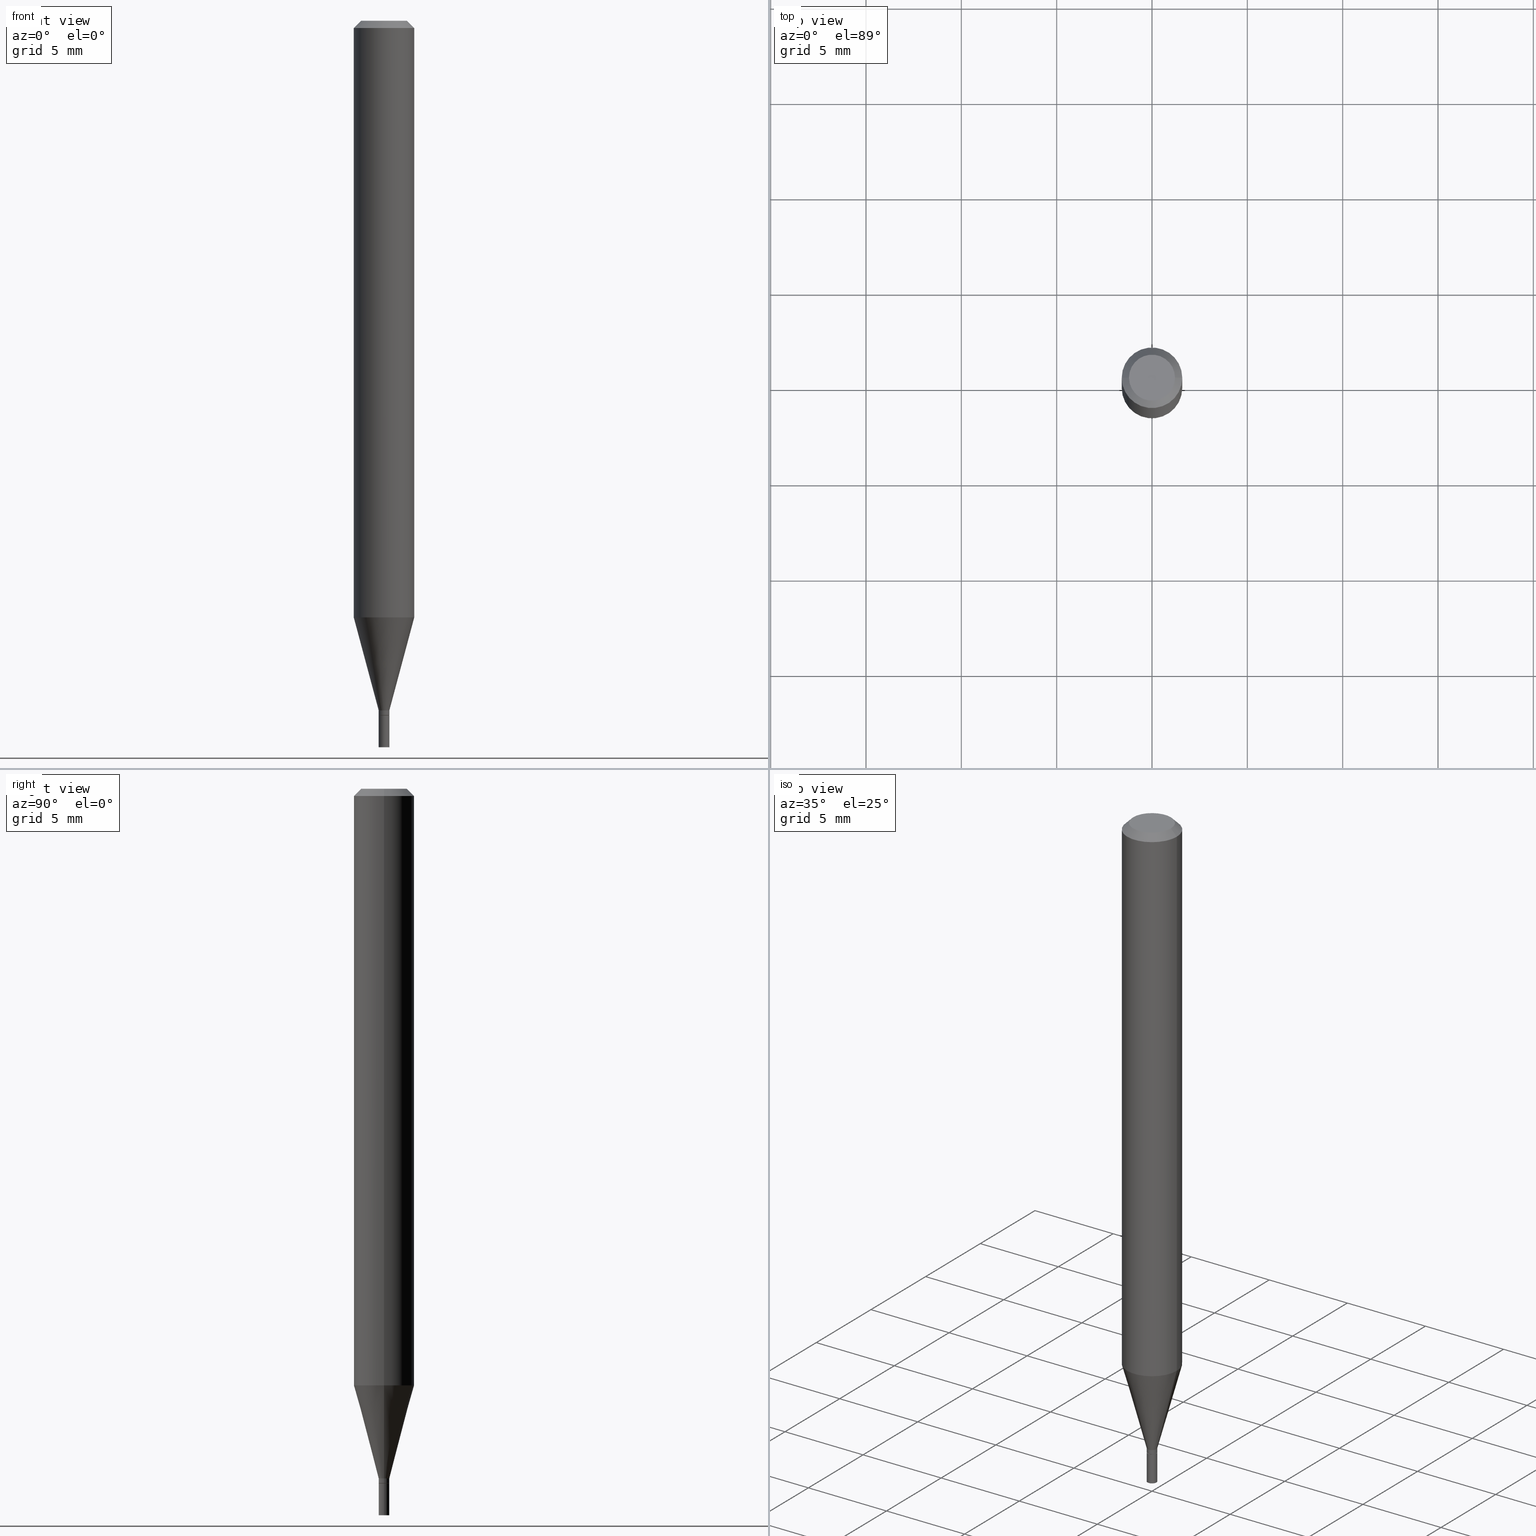
[diagram: canonical four-view strip — front | top / right | iso, engineering-drawing reading convention]
A machine part, canonical four-view strip (front | top / right | iso — engineering-drawing reading convention). The complete STEP part file that produces these views, byte-faithful:
ISO-10303-21;
HEADER;
FILE_DESCRIPTION (( 'STEP AP203' ),
    '1' );
FILE_NAME ('00531.STEP',
    '2024-03-19T21:32:59',
    ( '' ),
    ( '' ),
    'SwSTEP 2.0',
    'SolidWorks 2023',
    '' );
FILE_SCHEMA (( 'CONFIG_CONTROL_DESIGN' ));
ENDSEC;

DATA;
#1 = CLOSED_SHELL ( 'NONE', ( #451, #23, #195, #139 ) ) ;
#2 = SECURITY_CLASSIFICATION ( '', '', #167 ) ;
#3 = FACE_OUTER_BOUND ( 'NONE', #63, .T. ) ;
#4 = ORIENTED_EDGE ( 'NONE', *, *, #336, .F. ) ;
#5 = DIRECTION ( 'NONE',  ( 1.000000000000000000, -6.982962677686295898E-15, 0.000000000000000000 ) ) ;
#6 = ORIENTED_EDGE ( 'NONE', *, *, #160, .T. ) ;
#7 = DIRECTION ( 'NONE',  ( -2.445468806185136597E-29, 3.491481338843145583E-15, 1.000000000000000000 ) ) ;
#8 = VERTEX_POINT ( 'NONE', #300 ) ;
#9 = VECTOR ( 'NONE', #108, 39.37007874015748143 ) ;
#10 = LINE ( 'NONE', #357, #378 ) ;
#11 = VERTEX_POINT ( 'NONE', #126 ) ;
#12 = COORDINATED_UNIVERSAL_TIME_OFFSET ( 5, 0, .BEHIND. ) ;
#13 = ORIENTED_EDGE ( 'NONE', *, *, #336, .T. ) ;
#14 = EDGE_LOOP ( 'NONE', ( #262, #448 ) ) ;
#15 = EDGE_CURVE ( 'NONE', #11, #150, #39, .T. ) ;
#16 = AXIS2_PLACEMENT_3D ( 'NONE', #62, #265, #135 ) ;
#17 = CONICAL_SURFACE ( 'NONE', #105, 0.01049999999999999892, 0.7853981633974718157 ) ;
#18 = LINE ( 'NONE', #233, #48 ) ;
#19 = DIRECTION ( 'NONE',  ( 1.000000000000000000, -6.982962677686295110E-15, 0.000000000000000000 ) ) ;
#20 = FACE_OUTER_BOUND ( 'NONE', #367, .T. ) ;
#21 = PERSON_AND_ORGANIZATION_ROLE ( 'design_supplier' ) ;
#22 = DIRECTION ( 'NONE',  ( 1.000000000000000000, -6.982962677686262766E-15, 0.000000000000000000 ) ) ;
#23 = ADVANCED_FACE ( 'NONE', ( #376 ), #405, .F. ) ;
#24 = CARTESIAN_POINT ( 'NONE',  ( -0.01099999999999992130, 7.815970093361046124E-17, -5.410828599280358539E-31 ) ) ;
#25 = CIRCLE ( 'NONE', #413, 0.06250000000000000000 ) ;
#26 = CIRCLE ( 'NONE', #429, 0.01049999999999999892 ) ;
#27 = CARTESIAN_POINT ( 'NONE',  ( 7.681258945458397305E-17, 0.01099999999999499121, -1.434000000000000163 ) ) ;
#28 = MANIFOLD_SOLID_BREP ( 'Body-Move/Copy2[2]', #266 ) ;
#29 = CC_DESIGN_PERSON_AND_ORGANIZATION_ASSIGNMENT ( #332, #402, ( #2 ) ) ;
#30 = CARTESIAN_POINT ( 'NONE',  ( 3.668203209277705088E-31, -5.237222008264718399E-17, -0.01499999999999999944 ) ) ;
#31 = EDGE_CURVE ( 'NONE', #152, #283, #18, .T. ) ;
#32 = FACE_OUTER_BOUND ( 'NONE', #64, .T. ) ;
#33 = AXIS2_PLACEMENT_3D ( 'NONE', #116, #36, #466 ) ;
#34 = DIRECTION ( 'NONE',  ( -2.445468806185136597E-29, 3.491481338843145583E-15, 1.000000000000000000 ) ) ;
#35 = CARTESIAN_POINT ( 'NONE',  ( -0.01099999999999999936, -5.043843423149283907E-15, -1.434000000000000163 ) ) ;
#36 = DIRECTION ( 'NONE',  ( -2.445468806185136597E-29, 3.491481338843145583E-15, 1.000000000000000000 ) ) ;
#37 = ADVANCED_FACE ( 'NONE', ( #55 ), #236, .T. ) ;
#38 = VERTEX_POINT ( 'NONE', #372 ) ;
#39 = CIRCLE ( 'NONE', #16, 0.04749999999999999362 ) ;
#40 = AXIS2_PLACEMENT_3D ( 'NONE', #221, #121, #364 ) ;
#41 = CARTESIAN_POINT ( 'NONE',  ( 3.482347580007634944E-29, -4.971869426512640168E-15, -1.424000000000000155 ) ) ;
#42 = VERTEX_POINT ( 'NONE', #53 ) ;
#43 = DIRECTION ( 'NONE',  ( -0.7071067811865323627, 2.468850131082098105E-15, -0.7071067811865626718 ) ) ;
#44 = VERTEX_POINT ( 'NONE', #196 ) ;
#45 = DIRECTION ( 'NONE',  ( -2.445468806185136597E-29, 3.491481338843145583E-15, 1.000000000000000000 ) ) ;
#46 = ORIENTED_EDGE ( 'NONE', *, *, #84, .F. ) ;
#47 = APPROVAL ( #91, 'UNSPECIFIED' ) ;
#48 = VECTOR ( 'NONE', #90, 39.37007874015748143 ) ;
#49 = PERSON_AND_ORGANIZATION ( #120, #295 ) ;
#50 = PRODUCT_DEFINITION_FORMATION_WITH_SPECIFIED_SOURCE ( 'ANY', '', #201, .NOT_KNOWN. ) ;
#51 = EDGE_LOOP ( 'NONE', ( #275, #190, #6, #289 ) ) ;
#52 = LENGTH_MEASURE_WITH_UNIT ( LENGTH_MEASURE( 0.02539999999999999897 ), #194 );
#53 = CARTESIAN_POINT ( 'NONE',  ( 0.01099999999999992130, -5.081851088686198048E-15, -1.433500000000000218 ) ) ;
#54 = PERSON_AND_ORGANIZATION ( #120, #295 ) ;
#55 = FACE_OUTER_BOUND ( 'NONE', #259, .T. ) ;
#56 = ADVANCED_FACE ( 'NONE', ( #20 ), #335, .T. ) ;
#57 = CALENDAR_DATE ( 2024, 19, 3 ) ;
#58 = AXIS2_PLACEMENT_3D ( 'NONE', #460, #422, #210 ) ;
#59 = DIRECTION ( 'NONE',  ( 1.000000000000000000, -6.982962677686265922E-15, 4.876176775795935793E-29 ) ) ;
#60 = CC_DESIGN_PERSON_AND_ORGANIZATION_ASSIGNMENT ( #49, #21, ( #50 ) ) ;
#61 = APPROVAL_DATE_TIME ( #379, #305 ) ;
#62 = CARTESIAN_POINT ( 'NONE',  ( -1.575719463841376315E-44, 2.249709785436367094E-30, 6.443424916547820620E-16 ) ) ;
#63 = EDGE_LOOP ( 'NONE', ( #222, #399, #157, #100 ) ) ;
#64 = EDGE_LOOP ( 'NONE', ( #424, #119, #219, #231 ) ) ;
#65 = CC_DESIGN_PERSON_AND_ORGANIZATION_ASSIGNMENT ( #230, #202, ( #50 ) ) ;
#66 = DIRECTION ( 'NONE',  ( -2.445468806185136597E-29, 3.491481338843145583E-15, 1.000000000000000000 ) ) ;
#67 = CIRCLE ( 'NONE', #329, 0.06250000000000000000 ) ;
#68 = ADVANCED_BREP_SHAPE_REPRESENTATION ( '00531', ( #189, #28, #321 ), #389 ) ;
#69 = CARTESIAN_POINT ( 'NONE',  ( 3.482347580007634944E-29, -4.971869426512640168E-15, -1.424000000000000155 ) ) ;
#70 = EDGE_CURVE ( 'NONE', #44, #410, #270, .T. ) ;
#71 = FACE_OUTER_BOUND ( 'NONE', #185, .T. ) ;
#72 = APPROVAL_DATE_TIME ( #352, #427 ) ;
#73 = PLANE ( 'NONE',  #75 ) ;
#74 = AXIS2_PLACEMENT_3D ( 'NONE', #27, #140, #137 ) ;
#75 = AXIS2_PLACEMENT_3D ( 'NONE', #348, #314, #282 ) ;
#76 = DIRECTION ( 'NONE',  ( 1.000000000000000000, -6.982962677686245411E-15, 0.000000000000000000 ) ) ;
#77 = DIRECTION ( 'NONE',  ( -2.445468806185136597E-29, 3.491481338843145583E-15, 1.000000000000000000 ) ) ;
#78 = ORIENTED_EDGE ( 'NONE', *, *, #387, .T. ) ;
#79 = DIRECTION ( 'NONE',  ( 1.000000000000000000, -6.982962677686266711E-15, 4.876176775795935793E-29 ) ) ;
#80 = ORIENTED_EDGE ( 'NONE', *, *, #355, .F. ) ;
#81 = CIRCLE ( 'NONE', #331, 0.01099999999999999936 ) ;
#82 = FACE_OUTER_BOUND ( 'NONE', #256, .T. ) ;
#83 = EDGE_LOOP ( 'NONE', ( #322, #247, #439, #86 ) ) ;
#84 = EDGE_CURVE ( 'NONE', #182, #227, #428, .T. ) ;
#85 = CARTESIAN_POINT ( 'NONE',  ( 0.000000000000000000, 0.000000000000000000, 0.000000000000000000 ) ) ;
#86 = ORIENTED_EDGE ( 'NONE', *, *, #178, .F. ) ;
#87 = ADVANCED_FACE ( 'NONE', ( #304 ), #211, .T. ) ;
#88 = ORIENTED_EDGE ( 'NONE', *, *, #325, .T. ) ;
#89 = COORDINATED_UNIVERSAL_TIME_OFFSET ( 5, 0, .BEHIND. ) ;
#90 = DIRECTION ( 'NONE',  ( -0.2588190451025216832, 5.211531920934551831E-15, 0.9659258262890679791 ) ) ;
#91 = APPROVAL_STATUS ( 'not_yet_approved' ) ;
#92 = EDGE_CURVE ( 'NONE', #283, #301, #67, .T. ) ;
#93 = DIRECTION ( 'NONE',  ( -2.438088387897960049E-29, 3.491481338843145188E-15, 1.000000000000000000 ) ) ;
#94 = EDGE_CURVE ( 'NONE', #301, #401, #272, .T. ) ;
#95 = DIRECTION ( 'NONE',  ( -2.445468806185136597E-29, 3.491481338843145583E-15, 1.000000000000000000 ) ) ;
#96 = DATE_AND_TIME ( #340, #191 ) ;
#97 = AXIS2_PLACEMENT_3D ( 'NONE', #166, #95, #269 ) ;
#98 = CC_DESIGN_APPROVAL ( #47, ( #344 ) ) ;
#99 = CARTESIAN_POINT ( 'NONE',  ( 3.012326967607737433E-29, -4.300804560375218494E-15, -1.231799383410203452 ) ) ;
#100 = ORIENTED_EDGE ( 'NONE', *, *, #112, .F. ) ;
#101 = LINE ( 'NONE', #24, #9 ) ;
#102 = SHAPE_DEFINITION_REPRESENTATION ( #435, #68 ) ;
#103 = CARTESIAN_POINT ( 'NONE',  ( -0.04749999999999999362, 3.578768372314221846E-16, 6.443424916547796954E-16 ) ) ;
#104 = VECTOR ( 'NONE', #165, 39.37007874015748143 ) ;
#105 = AXIS2_PLACEMENT_3D ( 'NONE', #180, #328, #319 ) ;
#106 = CALENDAR_DATE ( 2024, 19, 3 ) ;
#107 = EDGE_CURVE ( 'NONE', #283, #38, #168, .T. ) ;
#108 = DIRECTION ( 'NONE',  ( -2.445468806185136877E-29, 3.491481338843145188E-15, 1.000000000000000000 ) ) ;
#109 = ORIENTED_EDGE ( 'NONE', *, *, #70, .F. ) ;
#110 = CARTESIAN_POINT ( 'NONE',  ( 0.01049999999999999892, -5.080105348016776545E-15, -1.434000000000000163 ) ) ;
#111 = DIRECTION ( 'NONE',  ( -2.445468806185136597E-29, 3.491481338843145583E-15, 1.000000000000000000 ) ) ;
#112 = EDGE_CURVE ( 'NONE', #38, #401, #25, .T. ) ;
#113 = APPROVAL_PERSON_ORGANIZATION ( #132, #305, #130 ) ;
#114 = DIRECTION ( 'NONE',  ( 1.000000000000000000, -6.982962677686245411E-15, 0.000000000000000000 ) ) ;
#115 = ADVANCED_FACE ( 'NONE', ( #317 ), #250, .T. ) ;
#116 = CARTESIAN_POINT ( 'NONE',  ( 3.012326967607737433E-29, -4.300804560375218494E-15, -1.231799383410203452 ) ) ;
#117 = ORIENTED_EDGE ( 'NONE', *, *, #370, .T. ) ;
#118 = CARTESIAN_POINT ( 'NONE',  ( 0.06250000000000000000, -4.811533449433679005E-16, -0.01499999999999999944 ) ) ;
#119 = ORIENTED_EDGE ( 'NONE', *, *, #246, .T. ) ;
#120 = PERSON ( 'UNSPECIFIED', 'UNSPECIFIED', 'UNSPECIFIED', ('UNSPECIFIED'), ('UNSPECIFIED'), ('UNSPECIFIED') ) ;
#121 = DIRECTION ( 'NONE',  ( -2.445468806185136597E-29, 3.491481338843145583E-15, 1.000000000000000000 ) ) ;
#122 = ORIENTED_EDGE ( 'NONE', *, *, #107, .T. ) ;
#123 = DIRECTION ( 'NONE',  ( 0.7071067811865323627, -7.319954787623203981E-15, -0.7071067811865626718 ) ) ;
#124 = ORIENTED_EDGE ( 'NONE', *, *, #278, .T. ) ;
#125 = COORDINATED_UNIVERSAL_TIME_OFFSET ( 5, 0, .BEHIND. ) ;
#126 = CARTESIAN_POINT ( 'NONE',  ( 0.04749999999999999362, -4.035134999187566790E-16, 6.443424916547846258E-16 ) ) ;
#127 = VECTOR ( 'NONE', #123, 39.37007874015748143 ) ;
#128 = CARTESIAN_POINT ( 'NONE',  ( -0.01099999999999999936, 7.815970093361101591E-17, -5.410828599280396199E-31 ) ) ;
#129 = DIRECTION ( 'NONE',  ( -2.445468806185136597E-29, 3.491481338843145583E-15, 1.000000000000000000 ) ) ;
#130 = APPROVAL_ROLE ( '' ) ;
#131 = DIRECTION ( 'NONE',  ( -2.445468806185136597E-29, 3.491481338843145583E-15, 1.000000000000000000 ) ) ;
#132 = PERSON_AND_ORGANIZATION ( #120, #295 ) ;
#133 = VECTOR ( 'NONE', #385, 39.37007874015748143 ) ;
#134 = CIRCLE ( 'NONE', #162, 0.01099999999999991956 ) ;
#135 = DIRECTION ( 'NONE',  ( 1.000000000000000000, -6.982962677686267499E-15, 4.852736867747366768E-29 ) ) ;
#136 = EDGE_CURVE ( 'NONE', #365, #152, #101, .T. ) ;
#137 = DIRECTION ( 'NONE',  ( -1.000000000000000000, 6.982962677686265922E-15, -4.876176775795935793E-29 ) ) ;
#138 = DIRECTION ( 'NONE',  ( 1.000000000000000000, -6.982962677686295898E-15, 0.000000000000000000 ) ) ;
#139 = ADVANCED_FACE ( 'NONE', ( #71 ), #384, .F. ) ;
#140 = DIRECTION ( 'NONE',  ( 2.438088387897960049E-29, -3.491481338843145188E-15, -1.000000000000000000 ) ) ;
#141 = EDGE_LOOP ( 'NONE', ( #109, #78, #380, #80 ) ) ;
#142 = CARTESIAN_POINT ( 'NONE',  ( 0.01099999999999999936, -7.681258945454891804E-17, 5.363794453375529652E-31 ) ) ;
#143 = CARTESIAN_POINT ( 'NONE',  ( 0.01099999999999991956, -5.048682015967188692E-15, -1.424000000000000155 ) ) ;
#144 = DIRECTION ( 'NONE',  ( -2.445468806185136597E-29, 3.491481338843145583E-15, 1.000000000000000000 ) ) ;
#145 = AXIS2_PLACEMENT_3D ( 'NONE', #409, #450, #453 ) ;
#146 = CIRCLE ( 'NONE', #267, 0.01099999999999999936 ) ;
#147 = DIRECTION ( 'NONE',  ( 1.000000000000000000, -6.982962677686266711E-15, 4.876176775795935793E-29 ) ) ;
#148 = ORIENTED_EDGE ( 'NONE', *, *, #136, .F. ) ;
#149 = CYLINDRICAL_SURFACE ( 'NONE', #257, 0.06250000000000000000 ) ;
#150 = VERTEX_POINT ( 'NONE', #103 ) ;
#151 = DIRECTION ( 'NONE',  ( 1.000000000000000000, -6.982962677686266711E-15, 4.876176775795935793E-29 ) ) ;
#152 = VERTEX_POINT ( 'NONE', #465 ) ;
#153 = CIRCLE ( 'NONE', #33, 0.06250000000000000000 ) ;
#154 = LINE ( 'NONE', #118, #127 ) ;
#155 = ORIENTED_EDGE ( 'NONE', *, *, #457, .F. ) ;
#156 = DIMENSIONAL_EXPONENTS ( 1.000000000000000000, 0.000000000000000000, 0.000000000000000000, 0.000000000000000000, 0.000000000000000000, 0.000000000000000000, 0.000000000000000000 ) ;
#157 = ORIENTED_EDGE ( 'NONE', *, *, #94, .T. ) ;
#158 = APPLICATION_PROTOCOL_DEFINITION ( 'international standard', 'config_control_design', 1994, #358 ) ;
#159 = EDGE_LOOP ( 'NONE', ( #330, #124, #395, #4 ) ) ;
#160 = EDGE_CURVE ( 'NONE', #8, #301, #345, .T. ) ;
#161 = CIRCLE ( 'NONE', #218, 0.04749999999999999362 ) ;
#162 = AXIS2_PLACEMENT_3D ( 'NONE', #69, #207, #311 ) ;
#163 =( CONVERSION_BASED_UNIT ( 'INCH', #52 ) LENGTH_UNIT ( ) NAMED_UNIT ( #156 ) );
#164 = EDGE_CURVE ( 'NONE', #432, #44, #404, .T. ) ;
#165 = DIRECTION ( 'NONE',  ( -2.445468806185136877E-29, 3.491481338843145188E-15, 1.000000000000000000 ) ) ;
#166 = CARTESIAN_POINT ( 'NONE',  ( 3.506802268069485929E-29, -5.006784239901070239E-15, -1.434000000000000163 ) ) ;
#167 = SECURITY_CLASSIFICATION_LEVEL ( 'unclassified' ) ;
#168 = LINE ( 'NONE', #171, #133 ) ;
#169 = CC_DESIGN_APPROVAL ( #305, ( #50 ) ) ;
#170 = CYLINDRICAL_SURFACE ( 'NONE', #316, 0.01099999999999999936 ) ;
#171 = CARTESIAN_POINT ( 'NONE',  ( -0.06250000000000000000, 4.440892098500626162E-16, -3.074334431409316114E-30 ) ) ;
#172 = EDGE_CURVE ( 'NONE', #150, #11, #161, .T. ) ;
#173 = APPROVAL_STATUS ( 'not_yet_approved' ) ;
#174 = CARTESIAN_POINT ( 'NONE',  ( -0.01049999999999999892, -4.932177252646259259E-15, -1.434000000000000163 ) ) ;
#175 = ADVANCED_FACE ( 'NONE', ( #32 ), #461, .T. ) ;
#176 = DIRECTION ( 'NONE',  ( -2.445468806185136597E-29, 3.491481338843145583E-15, 1.000000000000000000 ) ) ;
#177 = CONICAL_SURFACE ( 'NONE', #280, 0.01099999999999991956, 0.2617993877991502960 ) ;
#178 = EDGE_CURVE ( 'NONE', #432, #454, #206, .T. ) ;
#179 = DIRECTION ( 'NONE',  ( 1.000000000000000000, -6.982962677686287221E-15, 0.000000000000000000 ) ) ;
#180 = CARTESIAN_POINT ( 'NONE',  ( 3.506802268069485929E-29, -5.006784239901070239E-15, -1.434000000000000163 ) ) ;
#181 = CARTESIAN_POINT ( 'NONE',  ( 3.505579533666394249E-29, -5.005038499231650313E-15, -1.433500000000000218 ) ) ;
#182 = VERTEX_POINT ( 'NONE', #390 ) ;
#183 = AXIS2_PLACEMENT_3D ( 'NONE', #264, #371, #19 ) ;
#184 = CARTESIAN_POINT ( 'NONE',  ( 0.06250000000000000000, -4.888073874380388472E-16, -0.01499999999999999944 ) ) ;
#185 = EDGE_LOOP ( 'NONE', ( #240, #462 ) ) ;
#186 = CARTESIAN_POINT ( 'NONE',  ( 0.01099999999999999936, -5.314034597719267489E-15, -1.500000000000000222 ) ) ;
#187 = ORIENTED_EDGE ( 'NONE', *, *, #217, .T. ) ;
#188 = CARTESIAN_POINT ( 'NONE',  ( 3.506802268069485929E-29, -5.006784239901070239E-15, -1.434000000000000163 ) ) ;
#189 = MANIFOLD_SOLID_BREP ( 'Body-Move/Copy2[1]', #1 ) ;
#190 = ORIENTED_EDGE ( 'NONE', *, *, #442, .T. ) ;
#191 = LOCAL_TIME ( 17, 32, 59.00000000000000000, #125 ) ;
#192 = CARTESIAN_POINT ( 'NONE',  ( 0.01099999999999999936, -5.083596829355619552E-15, -1.434000000000000163 ) ) ;
#193 = ORIENTED_EDGE ( 'NONE', *, *, #164, .F. ) ;
#194 =( LENGTH_UNIT ( ) NAMED_UNIT ( * ) SI_UNIT ( $, .METRE. ) );
#195 = ADVANCED_FACE ( 'NONE', ( #204 ), #170, .T. ) ;
#196 = CARTESIAN_POINT ( 'NONE',  ( -0.01099999999999999936, -5.043843423149283907E-15, -1.500000000000000222 ) ) ;
#197 = DATE_AND_TIME ( #57, #346 ) ;
#198 = ORIENTED_EDGE ( 'NONE', *, *, #84, .T. ) ;
#199 = CIRCLE ( 'NONE', #40, 0.06250000000000000000 ) ;
#200 = DIRECTION ( 'NONE',  ( -1.000000000000000000, 6.982962677686266711E-15, 0.000000000000000000 ) ) ;
#201 = PRODUCT ( '00531', '00531', '', ( #342 ) ) ;
#202 = PERSON_AND_ORGANIZATION_ROLE ( 'creator' ) ;
#203 = DIRECTION ( 'NONE',  ( 2.445468806185136597E-29, -3.491481338843145583E-15, -1.000000000000000000 ) ) ;
#204 = FACE_OUTER_BOUND ( 'NONE', #141, .T. ) ;
#205 = LOCAL_TIME ( 17, 32, 59.00000000000000000, #310 ) ;
#206 = LINE ( 'NONE', #142, #396 ) ;
#207 = DIRECTION ( 'NONE',  ( -2.445468806185136597E-29, 3.491481338843145583E-15, 1.000000000000000000 ) ) ;
#208 = DIRECTION ( 'NONE',  ( 1.000000000000000000, -6.982962677686267499E-15, 4.852736867747366768E-29 ) ) ;
#209 = EDGE_CURVE ( 'NONE', #8, #152, #134, .T. ) ;
#210 = DIRECTION ( 'NONE',  ( 1.000000000000000000, -6.982962677686265922E-15, 4.876176775795935793E-29 ) ) ;
#211 = CONICAL_SURFACE ( 'NONE', #145, 0.06250000000000000000, 0.7853981633974268517 ) ;
#212 = AXIS2_PLACEMENT_3D ( 'NONE', #253, #397, #79 ) ;
#213 = CARTESIAN_POINT ( 'NONE',  ( -0.06249999999999997918, -3.856715350525155878E-15, -1.231799383410203452 ) ) ;
#214 = DIRECTION ( 'NONE',  ( -2.445468806185136597E-29, 3.491481338843145583E-15, 1.000000000000000000 ) ) ;
#215 = EDGE_LOOP ( 'NONE', ( #193, #441 ) ) ;
#216 = DIRECTION ( 'NONE',  ( -2.445468806185136597E-29, 3.491481338843145583E-15, 1.000000000000000000 ) ) ;
#217 = EDGE_CURVE ( 'NONE', #227, #42, #249, .T. ) ;
#218 = AXIS2_PLACEMENT_3D ( 'NONE', #383, #419, #208 ) ;
#219 = ORIENTED_EDGE ( 'NONE', *, *, #325, .F. ) ;
#220 = CIRCLE ( 'NONE', #251, 0.01099999999999999936 ) ;
#221 = CARTESIAN_POINT ( 'NONE',  ( 3.668203209277705088E-31, -5.237222008264718399E-17, -0.01499999999999999944 ) ) ;
#222 = ORIENTED_EDGE ( 'NONE', *, *, #107, .F. ) ;
#223 = DIRECTION ( 'NONE',  ( 1.000000000000000000, -6.982962677686265922E-15, 4.876176775795936353E-29 ) ) ;
#224 = ORIENTED_EDGE ( 'NONE', *, *, #209, .T. ) ;
#225 = DESIGN_CONTEXT ( 'detailed design', #406, 'design' ) ;
#226 = APPLICATION_PROTOCOL_DEFINITION ( 'international standard', 'config_control_design', 1994, #406 ) ;
#227 = VERTEX_POINT ( 'NONE', #110 ) ;
#228 = APPROVAL_PERSON_ORGANIZATION ( #239, #427, #459 ) ;
#229 = LOCAL_TIME ( 17, 32, 59.00000000000000000, #12 ) ;
#230 = PERSON_AND_ORGANIZATION ( #120, #295 ) ;
#231 = ORIENTED_EDGE ( 'NONE', *, *, #217, .F. ) ;
#232 = APPROVAL_DATE_TIME ( #197, #47 ) ;
#233 = CARTESIAN_POINT ( 'NONE',  ( -0.01099999999999991956, -4.893709725579029078E-15, -1.424000000000000155 ) ) ;
#234 = APPROVAL_ROLE ( '' ) ;
#235 = ORIENTED_EDGE ( 'NONE', *, *, #246, .F. ) ;
#236 = CONICAL_SURFACE ( 'NONE', #293, 0.06250000000000000000, 0.7853981633974268517 ) ;
#237 = CALENDAR_DATE ( 2024, 19, 3 ) ;
#238 = DIRECTION ( 'NONE',  ( -2.445468806185136877E-29, 3.491481338843145188E-15, 1.000000000000000000 ) ) ;
#239 = PERSON_AND_ORGANIZATION ( #120, #295 ) ;
#240 = ORIENTED_EDGE ( 'NONE', *, *, #315, .T. ) ;
#241 = DIRECTION ( 'NONE',  ( 0.2588190451025216832, 1.565188264969619798E-15, 0.9659258262890679791 ) ) ;
#242 = AXIS2_PLACEMENT_3D ( 'NONE', #307, #129, #341 ) ;
#243 = CIRCLE ( 'NONE', #362, 0.01099999999999991956 ) ;
#244 = DIRECTION ( 'NONE',  ( -2.445468806185136877E-29, 3.491481338843145188E-15, 1.000000000000000000 ) ) ;
#245 = CARTESIAN_POINT ( 'NONE',  ( 3.668203209277704895E-29, -5.237222008264718177E-15, -1.500000000000000222 ) ) ;
#246 = EDGE_CURVE ( 'NONE', #182, #365, #347, .T. ) ;
#247 = ORIENTED_EDGE ( 'NONE', *, *, #70, .T. ) ;
#248 = FACE_OUTER_BOUND ( 'NONE', #415, .T. ) ;
#249 = LINE ( 'NONE', #417, #455 ) ;
#250 = CONICAL_SURFACE ( 'NONE', #273, 0.01099999999999991956, 0.2617993877991502960 ) ;
#251 = AXIS2_PLACEMENT_3D ( 'NONE', #290, #216, #76 ) ;
#252 = DIRECTION ( 'NONE',  ( 1.000000000000000000, -6.982962677686295898E-15, 0.000000000000000000 ) ) ;
#253 = CARTESIAN_POINT ( 'NONE',  ( 0.000000000000000000, 0.000000000000000000, 0.000000000000000000 ) ) ;
#254 = ORIENTED_EDGE ( 'NONE', *, *, #31, .T. ) ;
#255 = DIRECTION ( 'NONE',  ( -2.445468806185136597E-29, 3.491481338843145583E-15, 1.000000000000000000 ) ) ;
#256 = EDGE_LOOP ( 'NONE', ( #235, #198, #187, #155 ) ) ;
#257 = AXIS2_PLACEMENT_3D ( 'NONE', #394, #297, #147 ) ;
#258 = FACE_OUTER_BOUND ( 'NONE', #83, .T. ) ;
#259 = EDGE_LOOP ( 'NONE', ( #381, #363, #13, #403 ) ) ;
#260 = ADVANCED_FACE ( 'NONE', ( #277 ), #73, .F. ) ;
#261 = LINE ( 'NONE', #292, #447 ) ;
#262 = ORIENTED_EDGE ( 'NONE', *, *, #172, .T. ) ;
#263 = ADVANCED_FACE ( 'NONE', ( #248 ), #386, .F. ) ;
#264 = CARTESIAN_POINT ( 'NONE',  ( 3.505579533666394249E-29, -5.005038499231650313E-15, -1.433500000000000218 ) ) ;
#265 = DIRECTION ( 'NONE',  ( -2.445468806185136597E-29, 3.491481338843145583E-15, 1.000000000000000000 ) ) ;
#266 = CLOSED_SHELL ( 'NONE', ( #56, #175, #87, #287, #115, #349, #377, #37, #260, #263, #418, #445 ) ) ;
#267 = AXIS2_PLACEMENT_3D ( 'NONE', #188, #214, #114 ) ;
#268 = CARTESIAN_POINT ( 'NONE',  ( 0.000000000000000000, 0.000000000000000000, 0.000000000000000000 ) ) ;
#269 = DIRECTION ( 'NONE',  ( 1.000000000000000000, -6.982962677686287221E-15, 0.000000000000000000 ) ) ;
#270 = LINE ( 'NONE', #128, #104 ) ;
#271 = PERSON_AND_ORGANIZATION ( #120, #295 ) ;
#272 = LINE ( 'NONE', #412, #420 ) ;
#273 = AXIS2_PLACEMENT_3D ( 'NONE', #285, #463, #138 ) ;
#274 = CIRCLE ( 'NONE', #183, 0.01099999999999992130 ) ;
#275 = ORIENTED_EDGE ( 'NONE', *, *, #31, .F. ) ;
#276 = EDGE_CURVE ( 'NONE', #227, #182, #26, .T. ) ;
#277 = FACE_OUTER_BOUND ( 'NONE', #14, .T. ) ;
#278 = EDGE_CURVE ( 'NONE', #11, #401, #154, .T. ) ;
#279 = DIRECTION ( 'NONE',  ( 1.000000000000000000, -6.982962677686245411E-15, 0.000000000000000000 ) ) ;
#280 = AXIS2_PLACEMENT_3D ( 'NONE', #41, #77, #252 ) ;
#281 = CC_DESIGN_SECURITY_CLASSIFICATION ( #2, ( #50 ) ) ;
#282 = DIRECTION ( 'NONE',  ( -1.000000000000000000, 6.982962677686265922E-15, -4.876176775795935793E-29 ) ) ;
#283 = VERTEX_POINT ( 'NONE', #213 ) ;
#284 = DIRECTION ( 'NONE',  ( 1.000000000000000000, -6.982962677686265922E-15, 4.876176775795936353E-29 ) ) ;
#285 = CARTESIAN_POINT ( 'NONE',  ( 3.482347580007634944E-29, -4.971869426512640168E-15, -1.424000000000000155 ) ) ;
#286 = CYLINDRICAL_SURFACE ( 'NONE', #438, 0.01099999999999992130 ) ;
#287 = ADVANCED_FACE ( 'NONE', ( #430 ), #149, .T. ) ;
#288 = DIRECTION ( 'NONE',  ( 1.000000000000000000, -6.982962677686295110E-15, 0.000000000000000000 ) ) ;
#289 = ORIENTED_EDGE ( 'NONE', *, *, #92, .F. ) ;
#290 = CARTESIAN_POINT ( 'NONE',  ( 3.668203209277704895E-29, -5.237222008264718177E-15, -1.500000000000000222 ) ) ;
#291 = ORIENTED_EDGE ( 'NONE', *, *, #276, .F. ) ;
#292 = CARTESIAN_POINT ( 'NONE',  ( -0.06250000000000000000, 3.840629472727444916E-16, -0.01499999999999999944 ) ) ;
#293 = AXIS2_PLACEMENT_3D ( 'NONE', #343, #203, #200 ) ;
#294 = ORIENTED_EDGE ( 'NONE', *, *, #442, .F. ) ;
#295 = ORGANIZATION ( 'UNSPECIFIED', 'UNSPECIFIED', '' ) ;
#296 = CC_DESIGN_APPROVAL ( #427, ( #2 ) ) ;
#297 = DIRECTION ( 'NONE',  ( -2.445468806185136597E-29, 3.491481338843145583E-15, 1.000000000000000000 ) ) ;
#298 = ORIENTED_EDGE ( 'NONE', *, *, #457, .T. ) ;
#299 = CALENDAR_DATE ( 2024, 19, 3 ) ;
#300 = CARTESIAN_POINT ( 'NONE',  ( 0.01099999999999991956, -5.048682015967188692E-15, -1.424000000000000155 ) ) ;
#301 = VERTEX_POINT ( 'NONE', #440 ) ;
#302 = VECTOR ( 'NONE', #456, 39.37007874015748143 ) ;
#303 = EDGE_CURVE ( 'NONE', #301, #283, #153, .T. ) ;
#304 = FACE_OUTER_BOUND ( 'NONE', #159, .T. ) ;
#305 = APPROVAL ( #452, 'UNSPECIFIED' ) ;
#306 = DATE_TIME_ROLE ( 'creation_date' ) ;
#307 = CARTESIAN_POINT ( 'NONE',  ( 0.000000000000000000, 0.000000000000000000, 0.000000000000000000 ) ) ;
#308 = ORIENTED_EDGE ( 'NONE', *, *, #303, .F. ) ;
#309 = LOCAL_TIME ( 17, 32, 59.00000000000000000, #89 ) ;
#310 = COORDINATED_UNIVERSAL_TIME_OFFSET ( 5, 0, .BEHIND. ) ;
#311 = DIRECTION ( 'NONE',  ( 1.000000000000000000, -6.982962677686295898E-15, 0.000000000000000000 ) ) ;
#312 = CC_DESIGN_PERSON_AND_ORGANIZATION_ASSIGNMENT ( #338, #373, ( #344 ) ) ;
#313 = DIRECTION ( 'NONE',  ( -2.445468806185136597E-29, 3.491481338843145583E-15, 1.000000000000000000 ) ) ;
#314 = DIRECTION ( 'NONE',  ( 2.438088387897960049E-29, -3.491481338843145188E-15, -1.000000000000000000 ) ) ;
#315 = EDGE_CURVE ( 'NONE', #454, #410, #81, .T. ) ;
#316 = AXIS2_PLACEMENT_3D ( 'NONE', #318, #111, #284 ) ;
#317 = FACE_OUTER_BOUND ( 'NONE', #382, .T. ) ;
#318 = CARTESIAN_POINT ( 'NONE',  ( 0.000000000000000000, 0.000000000000000000, 0.000000000000000000 ) ) ;
#319 = DIRECTION ( 'NONE',  ( 1.000000000000000000, -6.982962677686287221E-15, 0.000000000000000000 ) ) ;
#320 = DIRECTION ( 'NONE',  ( -2.445468806185136597E-29, 3.491481338843145583E-15, 1.000000000000000000 ) ) ;
#321 = AXIS2_PLACEMENT_3D ( 'NONE', #268, #411, #408 ) ;
#322 = ORIENTED_EDGE ( 'NONE', *, *, #164, .T. ) ;
#323 = DIRECTION ( 'NONE',  ( -2.445468806185136877E-29, 3.491481338843145188E-15, 1.000000000000000000 ) ) ;
#324 = EDGE_LOOP ( 'NONE', ( #148, #298, #117, #294 ) ) ;
#325 = EDGE_CURVE ( 'NONE', #42, #365, #353, .T. ) ;
#326 = FACE_OUTER_BOUND ( 'NONE', #324, .T. ) ;
#327 = ORIENTED_EDGE ( 'NONE', *, *, #160, .F. ) ;
#328 = DIRECTION ( 'NONE',  ( -2.445468806185136597E-29, 3.491481338843145583E-15, 1.000000000000000000 ) ) ;
#329 = AXIS2_PLACEMENT_3D ( 'NONE', #99, #131, #22 ) ;
#330 = ORIENTED_EDGE ( 'NONE', *, *, #15, .F. ) ;
#331 = AXIS2_PLACEMENT_3D ( 'NONE', #366, #255, #392 ) ;
#332 = PERSON_AND_ORGANIZATION ( #120, #295 ) ;
#333 = ORIENTED_EDGE ( 'NONE', *, *, #209, .F. ) ;
#334 =( NAMED_UNIT ( * ) SI_UNIT ( $, .STERADIAN. ) SOLID_ANGLE_UNIT ( ) );
#335 = CYLINDRICAL_SURFACE ( 'NONE', #242, 0.01099999999999992130 ) ;
#336 = EDGE_CURVE ( 'NONE', #150, #38, #261, .T. ) ;
#337 = UNCERTAINTY_MEASURE_WITH_UNIT (LENGTH_MEASURE( 1.000000000000000082E-05 ), #163, 'distance_accuracy_value', 'NONE');
#338 = PERSON_AND_ORGANIZATION ( #120, #295 ) ;
#339 = ORIENTED_EDGE ( 'NONE', *, *, #370, .F. ) ;
#340 = CALENDAR_DATE ( 2024, 19, 3 ) ;
#341 = DIRECTION ( 'NONE',  ( 1.000000000000000000, -6.982962677686266711E-15, 4.876176775795935793E-29 ) ) ;
#342 = MECHANICAL_CONTEXT ( 'NONE', #358, 'mechanical' ) ;
#343 = CARTESIAN_POINT ( 'NONE',  ( 3.668203209277705088E-31, -5.237222008264718399E-17, -0.01499999999999999944 ) ) ;
#344 = PRODUCT_DEFINITION ( 'UNKNOWN', '', #50, #225 ) ;
#345 = LINE ( 'NONE', #143, #388 ) ;
#346 = LOCAL_TIME ( 17, 32, 59.00000000000000000, #375 ) ;
#347 = LINE ( 'NONE', #174, #302 ) ;
#348 = CARTESIAN_POINT ( 'NONE',  ( 3.316907271900976096E-16, 0.04749999999999999362, 1.563258822323416346E-16 ) ) ;
#349 = ADVANCED_FACE ( 'NONE', ( #356 ), #177, .T. ) ;
#350 = CARTESIAN_POINT ( 'NONE',  ( 3.506802268069485929E-29, -5.006784239901070239E-15, -1.434000000000000163 ) ) ;
#351 = PRODUCT_RELATED_PRODUCT_CATEGORY ( 'detail', '', ( #201 ) ) ;
#352 = DATE_AND_TIME ( #106, #205 ) ;
#353 = CIRCLE ( 'NONE', #414, 0.01099999999999992130 ) ;
#354 = CARTESIAN_POINT ( 'NONE',  ( 3.506802268069485929E-29, -5.006784239901070239E-15, -1.434000000000000163 ) ) ;
#355 = EDGE_CURVE ( 'NONE', #410, #454, #146, .T. ) ;
#356 = FACE_OUTER_BOUND ( 'NONE', #51, .T. ) ;
#357 = CARTESIAN_POINT ( 'NONE',  ( 0.01099999999999992130, -7.681258945454838802E-17, 5.363794453375491117E-31 ) ) ;
#358 = APPLICATION_CONTEXT ( 'configuration controlled 3d designs of mechanical parts and assemblies' ) ;
#359 = EDGE_LOOP ( 'NONE', ( #368, #122, #444, #393 ) ) ;
#360 = AXIS2_PLACEMENT_3D ( 'NONE', #245, #176, #279 ) ;
#361 = CARTESIAN_POINT ( 'NONE',  ( -0.01099999999999992130, -4.926878798298038435E-15, -1.433500000000000218 ) ) ;
#362 = AXIS2_PLACEMENT_3D ( 'NONE', #437, #144, #5 ) ;
#363 = ORIENTED_EDGE ( 'NONE', *, *, #172, .F. ) ;
#364 = DIRECTION ( 'NONE',  ( 1.000000000000000000, -6.982962677686266711E-15, 0.000000000000000000 ) ) ;
#365 = VERTEX_POINT ( 'NONE', #361 ) ;
#366 = CARTESIAN_POINT ( 'NONE',  ( 3.506802268069485929E-29, -5.006784239901070239E-15, -1.434000000000000163 ) ) ;
#367 = EDGE_LOOP ( 'NONE', ( #88, #434, #333, #339 ) ) ;
#368 = ORIENTED_EDGE ( 'NONE', *, *, #303, .T. ) ;
#369 = AXIS2_PLACEMENT_3D ( 'NONE', #350, #66, #426 ) ;
#370 = EDGE_CURVE ( 'NONE', #42, #8, #10, .T. ) ;
#371 = DIRECTION ( 'NONE',  ( -2.445468806185136597E-29, 3.491481338843145583E-15, 1.000000000000000000 ) ) ;
#372 = CARTESIAN_POINT ( 'NONE',  ( -0.06250000000000000000, -1.732499180378870171E-15, -0.01499999999999999944 ) ) ;
#373 = PERSON_AND_ORGANIZATION_ROLE ( 'creator' ) ;
#374 = CARTESIAN_POINT ( 'NONE',  ( 3.576687321579069994E-29, -5.368277968210015545E-15, -1.500000000000000222 ) ) ;
#375 = COORDINATED_UNIVERSAL_TIME_OFFSET ( 5, 0, .BEHIND. ) ;
#376 = FACE_OUTER_BOUND ( 'NONE', #215, .T. ) ;
#377 = ADVANCED_FACE ( 'NONE', ( #3 ), #431, .T. ) ;
#378 = VECTOR ( 'NONE', #323, 39.37007874015748143 ) ;
#379 = DATE_AND_TIME ( #237, #309 ) ;
#380 = ORIENTED_EDGE ( 'NONE', *, *, #178, .T. ) ;
#381 = ORIENTED_EDGE ( 'NONE', *, *, #278, .F. ) ;
#382 = EDGE_LOOP ( 'NONE', ( #224, #254, #308, #327 ) ) ;
#383 = CARTESIAN_POINT ( 'NONE',  ( -1.575719463841376315E-44, 2.249709785436367094E-30, 6.443424916547820620E-16 ) ) ;
#384 = PLANE ( 'NONE',  #74 ) ;
#385 = DIRECTION ( 'NONE',  ( -2.445468806185136877E-29, 3.491481338843145188E-15, 1.000000000000000000 ) ) ;
#386 = PLANE ( 'NONE',  #58 ) ;
#387 = EDGE_CURVE ( 'NONE', #44, #432, #220, .T. ) ;
#388 = VECTOR ( 'NONE', #241, 39.37007874015748143 ) ;
#389 =( GEOMETRIC_REPRESENTATION_CONTEXT ( 3 ) GLOBAL_UNCERTAINTY_ASSIGNED_CONTEXT ( ( #337 ) ) GLOBAL_UNIT_ASSIGNED_CONTEXT ( ( #163, #449, #334 ) ) REPRESENTATION_CONTEXT ( 'NONE', 'WORKASPACE' ) );
#390 = CARTESIAN_POINT ( 'NONE',  ( -0.01049999999999999892, -4.929528025472149636E-15, -1.434000000000000163 ) ) ;
#391 = CC_DESIGN_PERSON_AND_ORGANIZATION_ASSIGNMENT ( #54, #446, ( #201 ) ) ;
#392 = DIRECTION ( 'NONE',  ( 1.000000000000000000, -6.982962677686245411E-15, 0.000000000000000000 ) ) ;
#393 = ORIENTED_EDGE ( 'NONE', *, *, #94, .F. ) ;
#394 = CARTESIAN_POINT ( 'NONE',  ( 0.000000000000000000, 0.000000000000000000, 0.000000000000000000 ) ) ;
#395 = ORIENTED_EDGE ( 'NONE', *, *, #423, .T. ) ;
#396 = VECTOR ( 'NONE', #244, 39.37007874015748143 ) ;
#397 = DIRECTION ( 'NONE',  ( -2.445468806185136597E-29, 3.491481338843145583E-15, 1.000000000000000000 ) ) ;
#398 = APPROVAL_PERSON_ORGANIZATION ( #271, #47, #234 ) ;
#399 = ORIENTED_EDGE ( 'NONE', *, *, #92, .T. ) ;
#400 = CYLINDRICAL_SURFACE ( 'NONE', #421, 0.01099999999999999936 ) ;
#401 = VERTEX_POINT ( 'NONE', #184 ) ;
#402 = PERSON_AND_ORGANIZATION_ROLE ( 'classification_officer' ) ;
#403 = ORIENTED_EDGE ( 'NONE', *, *, #112, .T. ) ;
#404 = CIRCLE ( 'NONE', #360, 0.01099999999999999936 ) ;
#405 = PLANE ( 'NONE',  #436 ) ;
#406 = APPLICATION_CONTEXT ( 'configuration controlled 3d designs of mechanical parts and assemblies' ) ;
#407 = CC_DESIGN_DATE_AND_TIME_ASSIGNMENT ( #443, #416, ( #2 ) ) ;
#408 = DIRECTION ( 'NONE',  ( 1.000000000000000000, 0.000000000000000000, 0.000000000000000000 ) ) ;
#409 = CARTESIAN_POINT ( 'NONE',  ( 3.668203209277705088E-31, -5.237222008264718399E-17, -0.01499999999999999944 ) ) ;
#410 = VERTEX_POINT ( 'NONE', #35 ) ;
#411 = DIRECTION ( 'NONE',  ( 0.000000000000000000, 0.000000000000000000, 1.000000000000000000 ) ) ;
#412 = CARTESIAN_POINT ( 'NONE',  ( 0.06250000000000000000, -4.364351673553916694E-16, 3.047610484872459871E-30 ) ) ;
#413 = AXIS2_PLACEMENT_3D ( 'NONE', #30, #313, #458 ) ;
#414 = AXIS2_PLACEMENT_3D ( 'NONE', #181, #320, #288 ) ;
#415 = EDGE_LOOP ( 'NONE', ( #291, #46 ) ) ;
#416 = DATE_TIME_ROLE ( 'classification_date' ) ;
#417 = CARTESIAN_POINT ( 'NONE',  ( 0.01049999999999999892, -5.080105348016776545E-15, -1.434000000000000163 ) ) ;
#418 = ADVANCED_FACE ( 'NONE', ( #82 ), #17, .T. ) ;
#419 = DIRECTION ( 'NONE',  ( -2.445468806185136597E-29, 3.491481338843145583E-15, 1.000000000000000000 ) ) ;
#420 = VECTOR ( 'NONE', #238, 39.37007874015748143 ) ;
#421 = AXIS2_PLACEMENT_3D ( 'NONE', #85, #45, #223 ) ;
#422 = DIRECTION ( 'NONE',  ( -2.438088387897960049E-29, 3.491481338843145188E-15, 1.000000000000000000 ) ) ;
#423 = EDGE_CURVE ( 'NONE', #401, #38, #199, .T. ) ;
#424 = ORIENTED_EDGE ( 'NONE', *, *, #276, .T. ) ;
#425 = DIRECTION ( 'NONE',  ( 0.7071067811865642261, -2.468850131082431399E-15, 0.7071067811865309194 ) ) ;
#426 = DIRECTION ( 'NONE',  ( 1.000000000000000000, -6.982962677686287221E-15, 0.000000000000000000 ) ) ;
#427 = APPROVAL ( #173, 'UNSPECIFIED' ) ;
#428 = CIRCLE ( 'NONE', #97, 0.01049999999999999892 ) ;
#429 = AXIS2_PLACEMENT_3D ( 'NONE', #354, #34, #179 ) ;
#430 = FACE_OUTER_BOUND ( 'NONE', #359, .T. ) ;
#431 = CYLINDRICAL_SURFACE ( 'NONE', #212, 0.06250000000000000000 ) ;
#432 = VERTEX_POINT ( 'NONE', #186 ) ;
#433 = CARTESIAN_POINT ( 'NONE',  ( 0.000000000000000000, 0.000000000000000000, 0.000000000000000000 ) ) ;
#434 = ORIENTED_EDGE ( 'NONE', *, *, #136, .T. ) ;
#435 = PRODUCT_DEFINITION_SHAPE ( 'NONE', 'NONE',  #344 ) ;
#436 = AXIS2_PLACEMENT_3D ( 'NONE', #374, #93, #59 ) ;
#437 = CARTESIAN_POINT ( 'NONE',  ( 3.482347580007634944E-29, -4.971869426512640168E-15, -1.424000000000000155 ) ) ;
#438 = AXIS2_PLACEMENT_3D ( 'NONE', #433, #7, #151 ) ;
#439 = ORIENTED_EDGE ( 'NONE', *, *, #315, .F. ) ;
#440 = CARTESIAN_POINT ( 'NONE',  ( 0.06249999999999997918, -4.737239727730610164E-15, -1.231799383410203452 ) ) ;
#441 = ORIENTED_EDGE ( 'NONE', *, *, #387, .F. ) ;
#442 = EDGE_CURVE ( 'NONE', #152, #8, #243, .T. ) ;
#443 = DATE_AND_TIME ( #299, #229 ) ;
#444 = ORIENTED_EDGE ( 'NONE', *, *, #423, .F. ) ;
#445 = ADVANCED_FACE ( 'NONE', ( #326 ), #286, .T. ) ;
#446 = PERSON_AND_ORGANIZATION_ROLE ( 'design_owner' ) ;
#447 = VECTOR ( 'NONE', #43, 39.37007874015748143 ) ;
#448 = ORIENTED_EDGE ( 'NONE', *, *, #15, .T. ) ;
#449 =( NAMED_UNIT ( * ) PLANE_ANGLE_UNIT ( ) SI_UNIT ( $, .RADIAN. ) );
#450 = DIRECTION ( 'NONE',  ( 2.445468806185136597E-29, -3.491481338843145583E-15, -1.000000000000000000 ) ) ;
#451 = ADVANCED_FACE ( 'NONE', ( #258 ), #400, .T. ) ;
#452 = APPROVAL_STATUS ( 'not_yet_approved' ) ;
#453 = DIRECTION ( 'NONE',  ( -1.000000000000000000, 6.982962677686266711E-15, 0.000000000000000000 ) ) ;
#454 = VERTEX_POINT ( 'NONE', #192 ) ;
#455 = VECTOR ( 'NONE', #425, 39.37007874015748143 ) ;
#456 = DIRECTION ( 'NONE',  ( -0.7071067811865642261, 7.493145998870414114E-15, 0.7071067811865309194 ) ) ;
#457 = EDGE_CURVE ( 'NONE', #365, #42, #274, .T. ) ;
#458 = DIRECTION ( 'NONE',  ( 1.000000000000000000, -6.982962677686266711E-15, 0.000000000000000000 ) ) ;
#459 = APPROVAL_ROLE ( '' ) ;
#460 = CARTESIAN_POINT ( 'NONE',  ( 3.506802268069485929E-29, -5.006784239901070239E-15, -1.434000000000000163 ) ) ;
#461 = CONICAL_SURFACE ( 'NONE', #369, 0.01049999999999999892, 0.7853981633974718157 ) ;
#462 = ORIENTED_EDGE ( 'NONE', *, *, #355, .T. ) ;
#463 = DIRECTION ( 'NONE',  ( -2.445468806185136597E-29, 3.491481338843145583E-15, 1.000000000000000000 ) ) ;
#464 = CC_DESIGN_DATE_AND_TIME_ASSIGNMENT ( #96, #306, ( #344 ) ) ;
#465 = CARTESIAN_POINT ( 'NONE',  ( -0.01099999999999991956, -4.375212538052092478E-15, -1.424000000000000155 ) ) ;
#466 = DIRECTION ( 'NONE',  ( 1.000000000000000000, -6.982962677686262766E-15, 0.000000000000000000 ) ) ;
ENDSEC;
END-ISO-10303-21;
